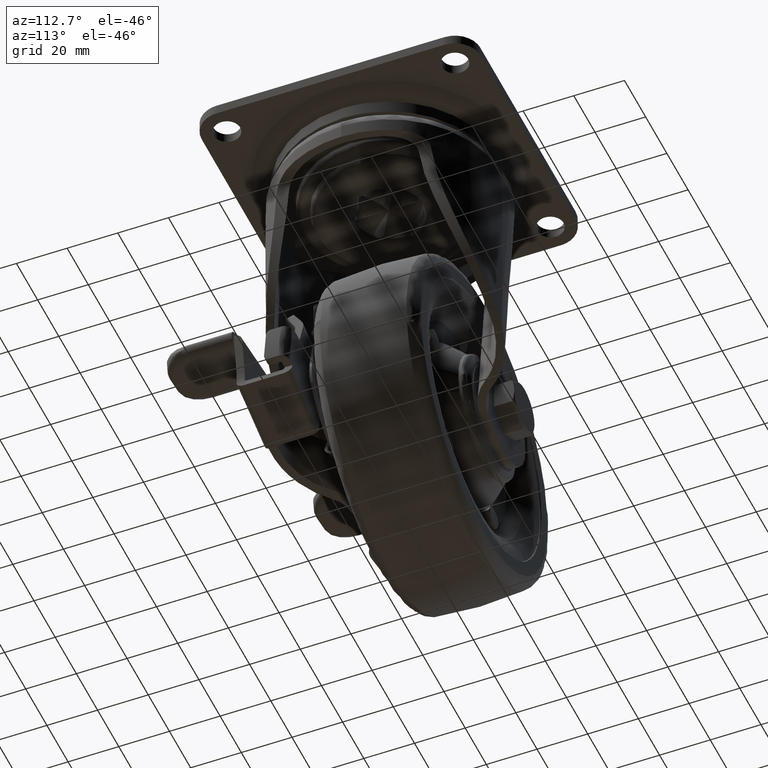
[diagram: clean part render]
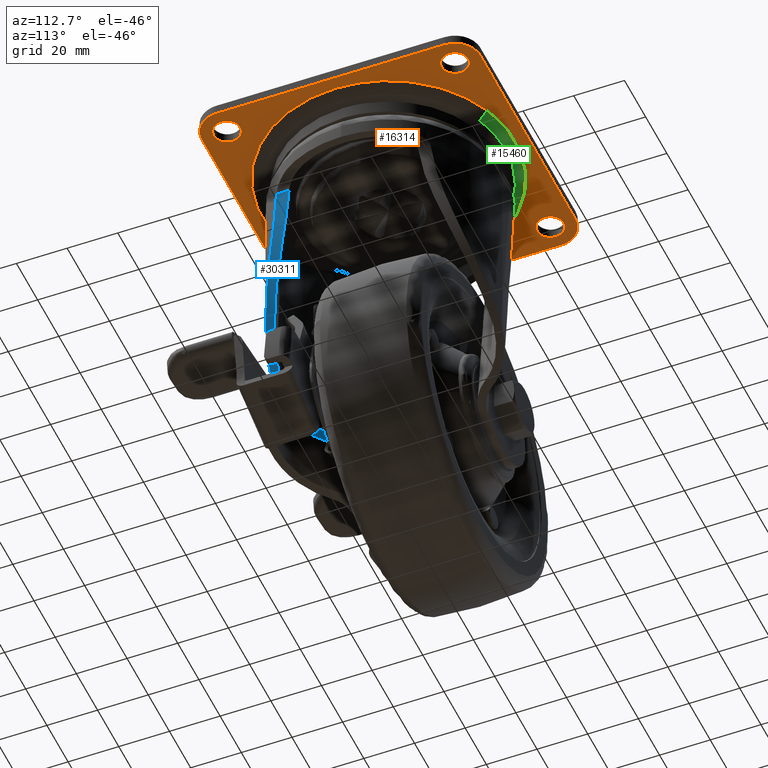
[diagram: same view with three faces highlighted in distinct colors, each labeled with its STEP entity id]
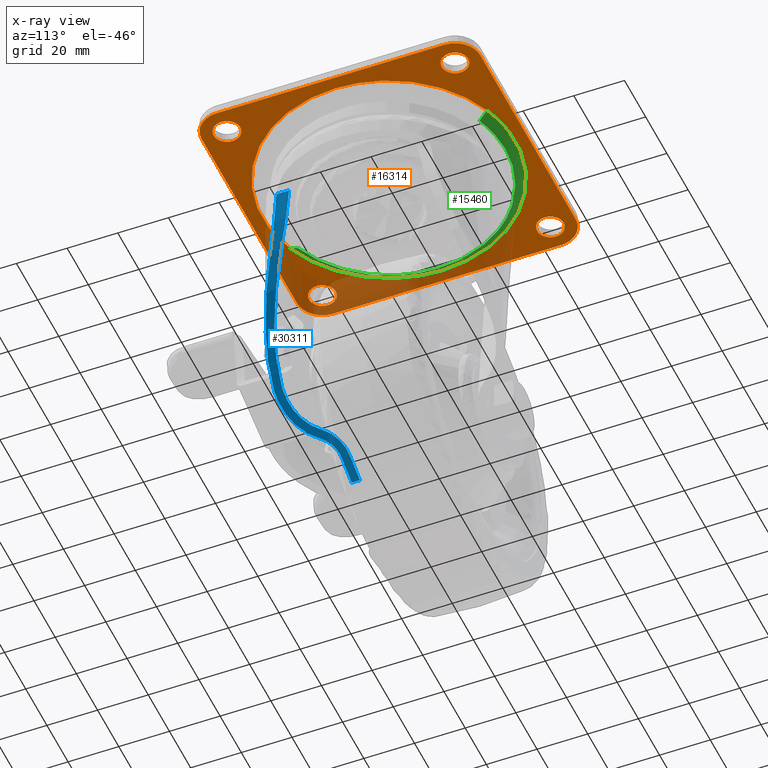
[diagram: x-ray of the same camera — body ghosted, the three highlighted faces saturated]
A machine part, auxiliary view with three faces highlighted in distinct colors.
The next image is the same camera in x-ray (body ghosted, the three faces saturated) — at least one of them is partly hidden behind the body in this view.
Their STEP definitions:

[orange] entity #16314 — the highlighted face is a freeform B-spline surface patch.
#15358=CARTESIAN_POINT('',(18.325061336310281,46.520878399073787,-3.999999999993363));
#15359=VERTEX_POINT('',#15358);
#15365=CARTESIAN_POINT('',(50.0,1.421085E-014,-4.0));
#15366=VERTEX_POINT('',#15365);
#15367=CARTESIAN_POINT('',(18.325061336310284,46.520878399073794,-3.999999999993363));
#15368=CARTESIAN_POINT('',(50.000000000001727,34.043788244907567,-3.999999999996681));
#15369=CARTESIAN_POINT('',(50.0,1.421085E-014,-4.0));
#15377=(BOUNDED_CURVE()B_SPLINE_CURVE(2,(#15367,#15368,#15369),.UNSPECIFIED.,.F.,.U.)B_SPLINE_CURVE_WITH_KNOTS((3,3),(0.312230357107682,0.500000000000000),.UNSPECIFIED.)CURVE()GEOMETRIC_REPRESENTATION_ITEM()RATIONAL_B_SPLINE_CURVE((0.890481630698705,0.780014179591266,1.0))REPRESENTATION_ITEM(''));
#15378=EDGE_CURVE('',#15359,#15366,#15377,.T.);
#15380=CARTESIAN_POINT('',(-18.325061336310281,-46.520878399073773,-3.999999999993364));
#15381=VERTEX_POINT('',#15380);
#15382=CARTESIAN_POINT('',(50.0,1.421085E-014,-4.0));
#15383=CARTESIAN_POINT('',(49.999999999998820,-50.000000000002963,-3.999999999997741));
#15384=CARTESIAN_POINT('',(-2.896260E-012,-50.000000000007368,-3.999999999994422));
#15385=CARTESIAN_POINT('',(-9.492796605387385,-50.000000000008200,-3.999999999993793));
#15386=CARTESIAN_POINT('',(-18.325061336310291,-46.520878399073766,-3.999999999993364));
#15394=(BOUNDED_CURVE()B_SPLINE_CURVE(2,(#15382,#15383,#15384,#15385,#15386),.UNSPECIFIED.,.F.,.U.)B_SPLINE_CURVE_WITH_KNOTS((3,2,3),(0.500000000000000,0.750000000000000,0.812230357107682),.UNSPECIFIED.)CURVE()GEOMETRIC_REPRESENTATION_ITEM()RATIONAL_B_SPLINE_CURVE((1.0,0.707106781186547,1.0,0.927092601595282,0.890481630698705))REPRESENTATION_ITEM(''));
#15395=EDGE_CURVE('',#15366,#15381,#15394,.T.);
#15425=CARTESIAN_POINT('',(-50.0,1.421085E-014,-4.0));
#15426=VERTEX_POINT('',#15425);
#15427=CARTESIAN_POINT('',(-18.325061336310291,-46.520878399073766,-3.999999999993364));
#15428=CARTESIAN_POINT('',(-50.000000000001720,-34.043788244907525,-3.999999999996682));
#15429=CARTESIAN_POINT('',(-50.0,1.421085E-014,-4.0));
#15437=(BOUNDED_CURVE()B_SPLINE_CURVE(2,(#15427,#15428,#15429),.UNSPECIFIED.,.F.,.U.)B_SPLINE_CURVE_WITH_KNOTS((3,3),(0.812230357107682,1.0),.UNSPECIFIED.)CURVE()GEOMETRIC_REPRESENTATION_ITEM()RATIONAL_B_SPLINE_CURVE((0.890481630698705,0.780014179591266,1.0))REPRESENTATION_ITEM(''));
#15438=EDGE_CURVE('',#15381,#15426,#15437,.T.);
#15440=CARTESIAN_POINT('',(-50.0,1.421085E-014,-4.0));
#15441=CARTESIAN_POINT('',(-49.999999999998820,50.000000000003013,-3.999999999997741));
#15442=CARTESIAN_POINT('',(2.914175E-012,50.000000000007390,-3.999999999994422));
#15443=CARTESIAN_POINT('',(9.492796605387397,50.000000000008221,-3.999999999993792));
#15444=CARTESIAN_POINT('',(18.325061336310284,46.520878399073794,-3.999999999993363));
#15452=(BOUNDED_CURVE()B_SPLINE_CURVE(2,(#15440,#15441,#15442,#15443,#15444),.UNSPECIFIED.,.F.,.U.)B_SPLINE_CURVE_WITH_KNOTS((3,2,3),(0.0,0.250000000000000,0.312230357107682),.UNSPECIFIED.)CURVE()GEOMETRIC_REPRESENTATION_ITEM()RATIONAL_B_SPLINE_CURVE((1.0,0.707106781186547,1.0,0.927092601595282,0.890481630698705))REPRESENTATION_ITEM(''));
#15453=EDGE_CURVE('',#15426,#15359,#15452,.T.);
#15513=CARTESIAN_POINT('',(-44.679502796045107,50.240208158289008,-4.0));
#15514=VERTEX_POINT('',#15513);
#15520=CARTESIAN_POINT('',(-39.750000000000000,45.0,-4.0));
#15521=VERTEX_POINT('',#15520);
#15522=CARTESIAN_POINT('',(-39.750000000000000,45.0,-4.0));
#15523=CARTESIAN_POINT('',(-39.750000000000163,49.938714054375097,-4.000000000000000));
#15524=CARTESIAN_POINT('',(-44.679502796045107,50.240208158289008,-4.000000000000001));
#15532=(BOUNDED_CURVE()B_SPLINE_CURVE(2,(#15522,#15523,#15524),.UNSPECIFIED.,.F.,.U.)B_SPLINE_CURVE_WITH_KNOTS((3,3),(0.500000000000000,0.739333213432627),.UNSPECIFIED.)CURVE()GEOMETRIC_REPRESENTATION_ITEM()RATIONAL_B_SPLINE_CURVE((1.0,0.719603698995003,0.976072580023191))REPRESENTATION_ITEM(''));
#15533=EDGE_CURVE('',#15521,#15514,#15532,.T.);
#15535=CARTESIAN_POINT('',(-45.320497203954893,39.759791841710992,-4.0));
#15536=VERTEX_POINT('',#15535);
#15537=CARTESIAN_POINT('',(-45.320497203954893,39.759791841710992,-4.000000000000000));
#15538=CARTESIAN_POINT('',(-45.160398182321202,39.750000000005478,-4.0));
#15539=CARTESIAN_POINT('',(-44.999999999999673,39.750000000005393,-4.0));
#15540=CARTESIAN_POINT('',(-39.749999999999844,39.750000000002601,-4.0));
#15541=CARTESIAN_POINT('',(-39.750000000000000,45.0,-4.0));
#15549=(BOUNDED_CURVE()B_SPLINE_CURVE(2,(#15537,#15538,#15539,#15540,#15541),.UNSPECIFIED.,.F.,.U.)B_SPLINE_CURVE_WITH_KNOTS((3,2,3),(0.239333213432627,0.250000000000000,0.500000000000000),.UNSPECIFIED.)CURVE()GEOMETRIC_REPRESENTATION_ITEM()RATIONAL_B_SPLINE_CURVE((0.976072580023191,0.987503082191544,1.0,0.707106781186547,1.0))REPRESENTATION_ITEM(''));
#15550=EDGE_CURVE('',#15536,#15521,#15549,.T.);
#15594=CARTESIAN_POINT('',(-50.249999999999993,45.0,-4.0));
#15595=VERTEX_POINT('',#15594);
#15596=CARTESIAN_POINT('',(-50.249999999999993,45.0,-4.0));
#15597=CARTESIAN_POINT('',(-50.249999999999815,40.061285945624881,-4.0));
#15598=CARTESIAN_POINT('',(-45.320497203954893,39.759791841710992,-4.0));
#15606=(BOUNDED_CURVE()B_SPLINE_CURVE(2,(#15596,#15597,#15598),.UNSPECIFIED.,.F.,.U.)B_SPLINE_CURVE_WITH_KNOTS((3,3),(0.0,0.239333213432627),.UNSPECIFIED.)CURVE()GEOMETRIC_REPRESENTATION_ITEM()RATIONAL_B_SPLINE_CURVE((1.0,0.719603698995003,0.976072580023191))REPRESENTATION_ITEM(''));
#15607=EDGE_CURVE('',#15595,#15536,#15606,.T.);
#15609=CARTESIAN_POINT('',(-44.679502796045107,50.240208158289008,-4.000000000000000));
#15610=CARTESIAN_POINT('',(-44.839601817678805,50.249999999994522,-4.000000000000001));
#15611=CARTESIAN_POINT('',(-45.000000000000327,50.249999999994600,-4.0));
#15612=CARTESIAN_POINT('',(-50.250000000000156,50.249999999997364,-4.0));
#15613=CARTESIAN_POINT('',(-50.249999999999993,45.0,-4.0));
#15621=(BOUNDED_CURVE()B_SPLINE_CURVE(2,(#15609,#15610,#15611,#15612,#15613),.UNSPECIFIED.,.F.,.U.)B_SPLINE_CURVE_WITH_KNOTS((3,2,3),(0.739333213432627,0.750000000000000,1.0),.UNSPECIFIED.)CURVE()GEOMETRIC_REPRESENTATION_ITEM()RATIONAL_B_SPLINE_CURVE((0.976072580023191,0.987503082191544,1.0,0.707106781186547,1.0))REPRESENTATION_ITEM(''));
#15622=EDGE_CURVE('',#15514,#15595,#15621,.T.);
#15695=CARTESIAN_POINT('',(45.320497203954893,50.240208158289008,-4.0));
#15696=VERTEX_POINT('',#15695);
#15702=CARTESIAN_POINT('',(50.249999999999993,45.0,-4.0));
#15703=VERTEX_POINT('',#15702);
#15704=CARTESIAN_POINT('',(50.249999999999993,45.0,-4.0));
#15705=CARTESIAN_POINT('',(50.249999999999815,49.938714054375104,-4.0));
#15706=CARTESIAN_POINT('',(45.320497203954893,50.240208158289015,-4.0));
#15714=(BOUNDED_CURVE()B_SPLINE_CURVE(2,(#15704,#15705,#15706),.UNSPECIFIED.,.F.,.U.)B_SPLINE_CURVE_WITH_KNOTS((3,3),(0.500000000000000,0.739333213432627),.UNSPECIFIED.)CURVE()GEOMETRIC_REPRESENTATION_ITEM()RATIONAL_B_SPLINE_CURVE((1.0,0.719603698995003,0.976072580023191))REPRESENTATION_ITEM(''));
#15715=EDGE_CURVE('',#15703,#15696,#15714,.T.);
#15717=CARTESIAN_POINT('',(44.679502796045107,39.759791841710992,-4.0));
#15718=VERTEX_POINT('',#15717);
#15719=CARTESIAN_POINT('',(44.679502796045114,39.759791841710992,-4.0));
#15720=CARTESIAN_POINT('',(44.839601817678798,39.750000000005464,-4.0));
#15721=CARTESIAN_POINT('',(45.000000000000327,39.750000000005393,-4.0));
#15722=CARTESIAN_POINT('',(50.250000000000156,39.750000000002601,-4.0));
#15723=CARTESIAN_POINT('',(50.249999999999993,45.0,-4.0));
#15731=(BOUNDED_CURVE()B_SPLINE_CURVE(2,(#15719,#15720,#15721,#15722,#15723),.UNSPECIFIED.,.F.,.U.)B_SPLINE_CURVE_WITH_KNOTS((3,2,3),(0.239333213432627,0.250000000000000,0.500000000000000),.UNSPECIFIED.)CURVE()GEOMETRIC_REPRESENTATION_ITEM()RATIONAL_B_SPLINE_CURVE((0.976072580023191,0.987503082191544,1.0,0.707106781186547,1.0))REPRESENTATION_ITEM(''));
#15732=EDGE_CURVE('',#15718,#15703,#15731,.T.);
#15776=CARTESIAN_POINT('',(39.750000000000000,45.0,-4.0));
#15777=VERTEX_POINT('',#15776);
#15778=CARTESIAN_POINT('',(39.750000000000000,45.0,-4.0));
#15779=CARTESIAN_POINT('',(39.750000000000171,40.061285945624896,-4.0));
#15780=CARTESIAN_POINT('',(44.679502796045114,39.759791841710992,-4.0));
#15788=(BOUNDED_CURVE()B_SPLINE_CURVE(2,(#15778,#15779,#15780),.UNSPECIFIED.,.F.,.U.)B_SPLINE_CURVE_WITH_KNOTS((3,3),(0.0,0.239333213432627),.UNSPECIFIED.)CURVE()GEOMETRIC_REPRESENTATION_ITEM()RATIONAL_B_SPLINE_CURVE((1.0,0.719603698995003,0.976072580023191))REPRESENTATION_ITEM(''));
#15789=EDGE_CURVE('',#15777,#15718,#15788,.T.);
#15791=CARTESIAN_POINT('',(45.320497203954893,50.240208158289001,-4.000000000000000));
#15792=CARTESIAN_POINT('',(45.160398182321202,50.249999999994522,-4.0));
#15793=CARTESIAN_POINT('',(44.999999999999673,50.249999999994607,-4.0));
#15794=CARTESIAN_POINT('',(39.749999999999844,50.249999999997364,-4.0));
#15795=CARTESIAN_POINT('',(39.750000000000000,45.0,-4.0));
#15803=(BOUNDED_CURVE()B_SPLINE_CURVE(2,(#15791,#15792,#15793,#15794,#15795),.UNSPECIFIED.,.F.,.U.)B_SPLINE_CURVE_WITH_KNOTS((3,2,3),(0.739333213432627,0.750000000000000,1.0),.UNSPECIFIED.)CURVE()GEOMETRIC_REPRESENTATION_ITEM()RATIONAL_B_SPLINE_CURVE((0.976072580023191,0.987503082191544,1.0,0.707106781186547,1.0))REPRESENTATION_ITEM(''));
#15804=EDGE_CURVE('',#15696,#15777,#15803,.T.);
#15877=CARTESIAN_POINT('',(-44.679502796045107,-39.759791841710992,-4.0));
#15878=VERTEX_POINT('',#15877);
#15884=CARTESIAN_POINT('',(-39.750000000000000,-45.0,-4.0));
#15885=VERTEX_POINT('',#15884);
#15886=CARTESIAN_POINT('',(-39.750000000000000,-45.0,-4.0));
#15887=CARTESIAN_POINT('',(-39.750000000000163,-40.061285945624888,-4.000000000000000));
#15888=CARTESIAN_POINT('',(-44.679502796045107,-39.759791841710985,-4.000000000000001));
#15896=(BOUNDED_CURVE()B_SPLINE_CURVE(2,(#15886,#15887,#15888),.UNSPECIFIED.,.F.,.U.)B_SPLINE_CURVE_WITH_KNOTS((3,3),(0.500000000000000,0.739333213432627),.UNSPECIFIED.)CURVE()GEOMETRIC_REPRESENTATION_ITEM()RATIONAL_B_SPLINE_CURVE((1.0,0.719603698995003,0.976072580023191))REPRESENTATION_ITEM(''));
#15897=EDGE_CURVE('',#15885,#15878,#15896,.T.);
#15899=CARTESIAN_POINT('',(-45.320497203954893,-50.240208158289008,-4.0));
#15900=VERTEX_POINT('',#15899);
#15901=CARTESIAN_POINT('',(-45.320497203954893,-50.240208158289008,-4.0));
#15902=CARTESIAN_POINT('',(-45.160398182321202,-50.249999999994529,-4.0));
#15903=CARTESIAN_POINT('',(-44.999999999999673,-50.249999999994607,-4.0));
#15904=CARTESIAN_POINT('',(-39.749999999999844,-50.249999999997385,-4.0));
#15905=CARTESIAN_POINT('',(-39.750000000000000,-45.0,-4.0));
#15913=(BOUNDED_CURVE()B_SPLINE_CURVE(2,(#15901,#15902,#15903,#15904,#15905),.UNSPECIFIED.,.F.,.U.)B_SPLINE_CURVE_WITH_KNOTS((3,2,3),(0.239333213432627,0.250000000000000,0.500000000000000),.UNSPECIFIED.)CURVE()GEOMETRIC_REPRESENTATION_ITEM()RATIONAL_B_SPLINE_CURVE((0.976072580023191,0.987503082191544,1.0,0.707106781186547,1.0))REPRESENTATION_ITEM(''));
#15914=EDGE_CURVE('',#15900,#15885,#15913,.T.);
#15958=CARTESIAN_POINT('',(-50.249999999999993,-45.0,-4.0));
#15959=VERTEX_POINT('',#15958);
#15960=CARTESIAN_POINT('',(-50.249999999999993,-45.0,-4.0));
#15961=CARTESIAN_POINT('',(-50.249999999999822,-49.938714054375090,-4.0));
#15962=CARTESIAN_POINT('',(-45.320497203954893,-50.240208158289008,-4.0));
#15970=(BOUNDED_CURVE()B_SPLINE_CURVE(2,(#15960,#15961,#15962),.UNSPECIFIED.,.F.,.U.)B_SPLINE_CURVE_WITH_KNOTS((3,3),(0.0,0.239333213432627),.UNSPECIFIED.)CURVE()GEOMETRIC_REPRESENTATION_ITEM()RATIONAL_B_SPLINE_CURVE((1.0,0.719603698995003,0.976072580023191))REPRESENTATION_ITEM(''));
#15971=EDGE_CURVE('',#15959,#15900,#15970,.T.);
#15973=CARTESIAN_POINT('',(-44.679502796045107,-39.759791841710985,-4.000000000000001));
#15974=CARTESIAN_POINT('',(-44.839601817678812,-39.750000000005464,-4.000000000000001));
#15975=CARTESIAN_POINT('',(-45.000000000000341,-39.750000000005393,-4.0));
#15976=CARTESIAN_POINT('',(-50.250000000000156,-39.750000000002601,-4.0));
#15977=CARTESIAN_POINT('',(-50.249999999999993,-45.0,-4.0));
#15985=(BOUNDED_CURVE()B_SPLINE_CURVE(2,(#15973,#15974,#15975,#15976,#15977),.UNSPECIFIED.,.F.,.U.)B_SPLINE_CURVE_WITH_KNOTS((3,2,3),(0.739333213432627,0.750000000000000,1.0),.UNSPECIFIED.)CURVE()GEOMETRIC_REPRESENTATION_ITEM()RATIONAL_B_SPLINE_CURVE((0.976072580023191,0.987503082191544,1.0,0.707106781186547,1.0))REPRESENTATION_ITEM(''));
#15986=EDGE_CURVE('',#15878,#15959,#15985,.T.);
#16059=CARTESIAN_POINT('',(45.320497203954893,-39.759791841710992,-4.0));
#16060=VERTEX_POINT('',#16059);
#16066=CARTESIAN_POINT('',(50.249999999999993,-45.0,-4.0));
#16067=VERTEX_POINT('',#16066);
#16068=CARTESIAN_POINT('',(50.249999999999993,-45.0,-4.0));
#16069=CARTESIAN_POINT('',(50.249999999999801,-40.061285945624888,-4.000000000000000));
#16070=CARTESIAN_POINT('',(45.320497203954893,-39.759791841710999,-4.000000000000000));
#16078=(BOUNDED_CURVE()B_SPLINE_CURVE(2,(#16068,#16069,#16070),.UNSPECIFIED.,.F.,.U.)B_SPLINE_CURVE_WITH_KNOTS((3,3),(0.500000000000000,0.739333213432627),.UNSPECIFIED.)CURVE()GEOMETRIC_REPRESENTATION_ITEM()RATIONAL_B_SPLINE_CURVE((1.0,0.719603698995003,0.976072580023191))REPRESENTATION_ITEM(''));
#16079=EDGE_CURVE('',#16067,#16060,#16078,.T.);
#16081=CARTESIAN_POINT('',(44.679502796045107,-50.240208158289008,-4.0));
#16082=VERTEX_POINT('',#16081);
#16083=CARTESIAN_POINT('',(44.679502796045114,-50.240208158289008,-4.0));
#16084=CARTESIAN_POINT('',(44.839601817678812,-50.249999999994529,-4.000000000000000));
#16085=CARTESIAN_POINT('',(45.000000000000327,-50.249999999994607,-4.0));
#16086=CARTESIAN_POINT('',(50.250000000000156,-50.249999999997385,-4.0));
#16087=CARTESIAN_POINT('',(50.249999999999993,-45.0,-4.0));
#16095=(BOUNDED_CURVE()B_SPLINE_CURVE(2,(#16083,#16084,#16085,#16086,#16087),.UNSPECIFIED.,.F.,.U.)B_SPLINE_CURVE_WITH_KNOTS((3,2,3),(0.239333213432627,0.250000000000000,0.500000000000000),.UNSPECIFIED.)CURVE()GEOMETRIC_REPRESENTATION_ITEM()RATIONAL_B_SPLINE_CURVE((0.976072580023192,0.987503082191545,1.0,0.707106781186547,1.0))REPRESENTATION_ITEM(''));
#16096=EDGE_CURVE('',#16082,#16067,#16095,.T.);
#16140=CARTESIAN_POINT('',(39.750000000000000,-45.0,-4.0));
#16141=VERTEX_POINT('',#16140);
#16142=CARTESIAN_POINT('',(39.750000000000000,-45.0,-4.0));
#16143=CARTESIAN_POINT('',(39.750000000000163,-49.938714054375112,-4.0));
#16144=CARTESIAN_POINT('',(44.679502796045107,-50.240208158289015,-4.0));
#16152=(BOUNDED_CURVE()B_SPLINE_CURVE(2,(#16142,#16143,#16144),.UNSPECIFIED.,.F.,.U.)B_SPLINE_CURVE_WITH_KNOTS((3,3),(0.0,0.239333213432628),.UNSPECIFIED.)CURVE()GEOMETRIC_REPRESENTATION_ITEM()RATIONAL_B_SPLINE_CURVE((1.0,0.719603698995003,0.976072580023192))REPRESENTATION_ITEM(''));
#16153=EDGE_CURVE('',#16141,#16082,#16152,.T.);
#16155=CARTESIAN_POINT('',(45.320497203954893,-39.759791841710999,-4.000000000000000));
#16156=CARTESIAN_POINT('',(45.160398182321195,-39.750000000005471,-4.000000000000001));
#16157=CARTESIAN_POINT('',(44.999999999999659,-39.750000000005393,-4.0));
#16158=CARTESIAN_POINT('',(39.749999999999829,-39.750000000002601,-4.0));
#16159=CARTESIAN_POINT('',(39.750000000000000,-45.0,-4.0));
#16167=(BOUNDED_CURVE()B_SPLINE_CURVE(2,(#16155,#16156,#16157,#16158,#16159),.UNSPECIFIED.,.F.,.U.)B_SPLINE_CURVE_WITH_KNOTS((3,2,3),(0.739333213432627,0.750000000000000,1.0),.UNSPECIFIED.)CURVE()GEOMETRIC_REPRESENTATION_ITEM()RATIONAL_B_SPLINE_CURVE((0.976072580023191,0.987503082191544,1.0,0.707106781186547,1.0))REPRESENTATION_ITEM(''));
#16168=EDGE_CURVE('',#16060,#16141,#16167,.T.);
#16189=CARTESIAN_POINT('',(-60.494499786798663,60.494499786798663,-4.0));
#16190=CARTESIAN_POINT('',(60.494502737228572,60.494499786798663,-4.0));
#16191=CARTESIAN_POINT('',(-60.494499786798663,-60.494502737228572,-4.0));
#16192=CARTESIAN_POINT('',(60.494502737228572,-60.494502737228572,-4.0));
#16193=B_SPLINE_SURFACE_WITH_KNOTS('',1,1,((#16189,#16191),(#16190,#16192)),.UNSPECIFIED.,.F.,.F.,.U.,(2,2),(2,2),(0.0,120.989002524027200),(0.0,120.989002524027200),.UNSPECIFIED.);
#16194=CARTESIAN_POINT('',(55.0,45.0,-4.0));
#16195=VERTEX_POINT('',#16194);
#16196=CARTESIAN_POINT('',(45.0,55.0,-4.0));
#16197=VERTEX_POINT('',#16196);
#16198=CARTESIAN_POINT('',(55.0,45.0,-4.0));
#16199=CARTESIAN_POINT('',(55.000000000000007,55.000000000000007,-4.000000000000000));
#16200=CARTESIAN_POINT('',(45.0,55.0,-4.0));
#16208=(BOUNDED_CURVE()B_SPLINE_CURVE(2,(#16198,#16199,#16200),.UNSPECIFIED.,.F.,.U.)CURVE()GEOMETRIC_REPRESENTATION_ITEM()QUASI_UNIFORM_CURVE()RATIONAL_B_SPLINE_CURVE((1.0,0.707106781186548,1.0))REPRESENTATION_ITEM(''));
#16209=EDGE_CURVE('',#16195,#16197,#16208,.T.);
#16210=ORIENTED_EDGE('',*,*,#16209,.F.);
#16211=CARTESIAN_POINT('',(55.0,-45.0,-4.0));
#16212=VERTEX_POINT('',#16211);
#16213=CARTESIAN_POINT('',(55.0,-45.0,-4.0));
#16214=CARTESIAN_POINT('',(55.0,45.0,-4.0));
#16215=QUASI_UNIFORM_CURVE('',1,(#16213,#16214),.UNSPECIFIED.,.F.,.U.);
#16216=EDGE_CURVE('',#16212,#16195,#16215,.T.);
#16217=ORIENTED_EDGE('',*,*,#16216,.F.);
#16218=CARTESIAN_POINT('',(45.0,-55.0,-4.0));
#16219=VERTEX_POINT('',#16218);
#16220=CARTESIAN_POINT('',(45.0,-55.0,-4.0));
#16221=CARTESIAN_POINT('',(55.000000000000007,-55.000000000000007,-4.000000000000000));
#16222=CARTESIAN_POINT('',(55.0,-45.0,-4.0));
#16230=(BOUNDED_CURVE()B_SPLINE_CURVE(2,(#16220,#16221,#16222),.UNSPECIFIED.,.F.,.U.)CURVE()GEOMETRIC_REPRESENTATION_ITEM()QUASI_UNIFORM_CURVE()RATIONAL_B_SPLINE_CURVE((1.0,0.707106781186548,1.0))REPRESENTATION_ITEM(''));
#16231=EDGE_CURVE('',#16219,#16212,#16230,.T.);
#16232=ORIENTED_EDGE('',*,*,#16231,.F.);
#16233=CARTESIAN_POINT('',(-45.0,-55.0,-4.0));
#16234=VERTEX_POINT('',#16233);
#16235=CARTESIAN_POINT('',(-45.0,-55.0,-4.0));
#16236=CARTESIAN_POINT('',(45.0,-55.0,-4.0));
#16237=QUASI_UNIFORM_CURVE('',1,(#16235,#16236),.UNSPECIFIED.,.F.,.U.);
#16238=EDGE_CURVE('',#16234,#16219,#16237,.T.);
#16239=ORIENTED_EDGE('',*,*,#16238,.F.);
#16240=CARTESIAN_POINT('',(-55.0,-45.0,-4.0));
#16241=VERTEX_POINT('',#16240);
#16242=CARTESIAN_POINT('',(-55.0,-45.0,-4.0));
#16243=CARTESIAN_POINT('',(-55.000000000000007,-55.000000000000007,-4.000000000000000));
#16244=CARTESIAN_POINT('',(-45.0,-55.0,-4.0));
#16252=(BOUNDED_CURVE()B_SPLINE_CURVE(2,(#16242,#16243,#16244),.UNSPECIFIED.,.F.,.U.)CURVE()GEOMETRIC_REPRESENTATION_ITEM()QUASI_UNIFORM_CURVE()RATIONAL_B_SPLINE_CURVE((1.0,0.707106781186548,1.0))REPRESENTATION_ITEM(''));
#16253=EDGE_CURVE('',#16241,#16234,#16252,.T.);
#16254=ORIENTED_EDGE('',*,*,#16253,.F.);
#16255=CARTESIAN_POINT('',(-55.0,45.0,-4.0));
#16256=VERTEX_POINT('',#16255);
#16257=CARTESIAN_POINT('',(-55.0,45.0,-4.0));
#16258=CARTESIAN_POINT('',(-55.0,-45.0,-4.0));
#16259=QUASI_UNIFORM_CURVE('',1,(#16257,#16258),.UNSPECIFIED.,.F.,.U.);
#16260=EDGE_CURVE('',#16256,#16241,#16259,.T.);
#16261=ORIENTED_EDGE('',*,*,#16260,.F.);
#16262=CARTESIAN_POINT('',(-45.0,55.0,-4.0));
#16263=VERTEX_POINT('',#16262);
#16264=CARTESIAN_POINT('',(-45.0,55.0,-4.0));
#16265=CARTESIAN_POINT('',(-55.000000000000007,55.000000000000007,-4.000000000000000));
#16266=CARTESIAN_POINT('',(-55.0,45.0,-4.0));
#16274=(BOUNDED_CURVE()B_SPLINE_CURVE(2,(#16264,#16265,#16266),.UNSPECIFIED.,.F.,.U.)CURVE()GEOMETRIC_REPRESENTATION_ITEM()QUASI_UNIFORM_CURVE()RATIONAL_B_SPLINE_CURVE((1.0,0.707106781186548,1.0))REPRESENTATION_ITEM(''));
#16275=EDGE_CURVE('',#16263,#16256,#16274,.T.);
#16276=ORIENTED_EDGE('',*,*,#16275,.F.);
#16277=CARTESIAN_POINT('',(45.0,55.0,-4.0));
#16278=CARTESIAN_POINT('',(-45.0,55.0,-4.0));
#16279=QUASI_UNIFORM_CURVE('',1,(#16277,#16278),.UNSPECIFIED.,.F.,.U.);
#16280=EDGE_CURVE('',#16197,#16263,#16279,.T.);
#16281=ORIENTED_EDGE('',*,*,#16280,.F.);
#16282=EDGE_LOOP('',(#16210,#16217,#16232,#16239,#16254,#16261,#16276,#16281));
#16283=FACE_OUTER_BOUND('',#16282,.T.);
#16284=ORIENTED_EDGE('',*,*,#16079,.T.);
#16285=ORIENTED_EDGE('',*,*,#16168,.T.);
#16286=ORIENTED_EDGE('',*,*,#16153,.T.);
#16287=ORIENTED_EDGE('',*,*,#16096,.T.);
#16288=EDGE_LOOP('',(#16284,#16285,#16286,#16287));
#16289=FACE_BOUND('',#16288,.T.);
#16290=ORIENTED_EDGE('',*,*,#15897,.T.);
#16291=ORIENTED_EDGE('',*,*,#15986,.T.);
#16292=ORIENTED_EDGE('',*,*,#15971,.T.);
#16293=ORIENTED_EDGE('',*,*,#15914,.T.);
#16294=EDGE_LOOP('',(#16290,#16291,#16292,#16293));
#16295=FACE_BOUND('',#16294,.T.);
#16296=ORIENTED_EDGE('',*,*,#15715,.T.);
#16297=ORIENTED_EDGE('',*,*,#15804,.T.);
#16298=ORIENTED_EDGE('',*,*,#15789,.T.);
#16299=ORIENTED_EDGE('',*,*,#15732,.T.);
#16300=EDGE_LOOP('',(#16296,#16297,#16298,#16299));
#16301=FACE_BOUND('',#16300,.T.);
#16302=ORIENTED_EDGE('',*,*,#15533,.T.);
#16303=ORIENTED_EDGE('',*,*,#15622,.T.);
#16304=ORIENTED_EDGE('',*,*,#15607,.T.);
#16305=ORIENTED_EDGE('',*,*,#15550,.T.);
#16306=EDGE_LOOP('',(#16302,#16303,#16304,#16305));
#16307=FACE_BOUND('',#16306,.T.);
#16308=ORIENTED_EDGE('',*,*,#15453,.F.);
#16309=ORIENTED_EDGE('',*,*,#15438,.F.);
#16310=ORIENTED_EDGE('',*,*,#15395,.F.);
#16311=ORIENTED_EDGE('',*,*,#15378,.F.);
#16312=EDGE_LOOP('',(#16308,#16309,#16310,#16311));
#16313=FACE_BOUND('',#16312,.T.);
#16314=ADVANCED_FACE('',(#16283,#16289,#16295,#16301,#16307,#16313),#16193,.T.);

[blue] entity #30311 — the highlighted face is a freeform B-spline surface patch.
#29293=CARTESIAN_POINT('',(-13.958340382854940,-32.171004480450847,-109.168453778326590));
#29294=VERTEX_POINT('',#29293);
#29300=CARTESIAN_POINT('',(-24.742344826114749,-25.649999999999999,-115.044881371074000));
#29301=VERTEX_POINT('',#29300);
#29302=CARTESIAN_POINT('',(-24.742344826114749,-25.649999999999999,-115.044881371074000));
#29303=CARTESIAN_POINT('',(-24.190412240721589,-25.650000000000020,-114.786590730680300));
#29304=CARTESIAN_POINT('',(-23.646766445579999,-25.687769128571439,-114.526052733897900));
#29305=CARTESIAN_POINT('',(-22.575111066813680,-25.834718690428360,-114.000791604115610));
#29306=CARTESIAN_POINT('',(-22.047104710375500,-25.943914283693200,-113.736067767809300));
#29307=CARTESIAN_POINT('',(-21.266579206367851,-26.161065951219570,-113.336254944710900));
#29308=CARTESIAN_POINT('',(-21.008322437452001,-26.242371084852671,-113.202531413340400));
#29309=CARTESIAN_POINT('',(-20.623824274207589,-26.377947470953071,-113.001338588919300));
#29310=CARTESIAN_POINT('',(-20.496139670660479,-26.425411282841061,-112.934173210368800));
#29311=CARTESIAN_POINT('',(-20.241738516300771,-26.524945838127529,-112.799654119423000));
#29312=CARTESIAN_POINT('',(-20.115528163561478,-26.576821492426671,-112.732567702895810));
#29313=CARTESIAN_POINT('',(-19.490464081943120,-26.846159112786101,-112.398630314858200));
#29314=CARTESIAN_POINT('',(-19.008328626311489,-27.093819314078459,-112.135612121565400));
#29315=CARTESIAN_POINT('',(-18.078438173788641,-27.652253579920892,-111.619015901189900));
#29316=CARTESIAN_POINT('',(-17.630683312090309,-27.963022681637870,-111.365432038138490));
#29317=CARTESIAN_POINT('',(-16.985050869415488,-28.478194305400130,-110.993647807955700));
#29318=CARTESIAN_POINT('',(-16.774186723531130,-28.658115379464121,-110.871158721660810));
#29319=CARTESIAN_POINT('',(-16.464570320891230,-28.940783446115741,-110.689849803018400));
#29320=CARTESIAN_POINT('',(-16.362790327085840,-29.036862409189649,-110.629999976792310));
#29321=CARTESIAN_POINT('',(-16.162726254315579,-29.232090968837820,-110.511894677903700));
#29322=CARTESIAN_POINT('',(-16.064335877356331,-29.331337166614318,-110.453576985428300));
#29323=CARTESIAN_POINT('',(-15.580524403726660,-29.835706046411470,-110.165729477090590));
#29324=CARTESIAN_POINT('',(-15.219411274250410,-30.265126605999210,-109.947365063961900));
#29325=CARTESIAN_POINT('',(-14.549136764684921,-31.177106784100388,-109.537048855995490));
#29326=CARTESIAN_POINT('',(-14.239955605257389,-31.659642282395669,-109.345078803464200));
#29327=CARTESIAN_POINT('',(-13.958340382854940,-32.171004480450847,-109.168453778326390));
#29328=B_SPLINE_CURVE_WITH_KNOTS('',3,(#29302,#29303,#29304,#29305,#29306,#29307,#29308,#29309,#29310,#29311,#29312,#29313,#29314,#29315,#29316,#29317,#29318,#29319,#29320,#29321,#29322,#29323,#29324,#29325,#29326,#29327),.UNSPECIFIED.,.F.,.U.,(4,2,2,2,2,2,2,2,2,2,2,2,4),(0.0,0.124999999999999,0.249999999999998,0.312499999999998,0.343749999999998,0.374999999999998,0.499999999999998,0.624999999999999,0.687499999999998,0.718749999999998,0.749999999999999,0.874999999999999,1.0),.UNSPECIFIED.);
#29329=EDGE_CURVE('',#29301,#29294,#29328,.T.);
#29381=CARTESIAN_POINT('',(-16.555370508401651,-33.790154909432403,-110.743020481817990));
#29382=VERTEX_POINT('',#29381);
#29425=CARTESIAN_POINT('',(-24.742344826114749,-28.850000000000001,-115.044881371074000));
#29426=VERTEX_POINT('',#29425);
#29432=CARTESIAN_POINT('',(-16.555370508401651,-33.790154909432452,-110.743020481817990));
#29433=CARTESIAN_POINT('',(-16.769664878360292,-33.402765666140027,-110.868550805787810));
#29434=CARTESIAN_POINT('',(-17.004892964973621,-33.037217168680073,-111.005278741320590));
#29435=CARTESIAN_POINT('',(-17.514615514302449,-32.346448813328692,-111.298335834360900));
#29436=CARTESIAN_POINT('',(-17.789125456362399,-32.021246896747293,-111.454677203337500));
#29437=CARTESIAN_POINT('',(-18.230162605686601,-31.563022158811521,-111.702734893314600));
#29438=CARTESIAN_POINT('',(-18.382070317384962,-31.415227384619129,-111.787686789041200));
#29439=CARTESIAN_POINT('',(-18.617400889806341,-31.201022237690768,-111.918439109802900));
#29440=CARTESIAN_POINT('',(-18.697171367747320,-31.130808121779680,-111.962622050192710));
#29441=CARTESIAN_POINT('',(-18.858113546496892,-30.993828681021139,-112.051471481861600));
#29442=CARTESIAN_POINT('',(-18.939407875356292,-30.926946815664010,-112.096206397219010));
#29443=CARTESIAN_POINT('',(-19.349943209399971,-30.600430728442198,-112.321362100018700));
#29444=CARTESIAN_POINT('',(-19.691322621272569,-30.364366360636030,-112.506198347279000));
#29445=CARTESIAN_POINT('',(-20.399521988480849,-29.940647988507671,-112.883985871929000));
#29446=CARTESIAN_POINT('',(-20.766343081219290,-29.752999157169580,-113.076940977618090));
#29447=CARTESIAN_POINT('',(-21.241290745418450,-29.549178599159621,-113.322788575655490));
#29448=CARTESIAN_POINT('',(-21.337219830247399,-29.509913464927799,-113.372251367749000));
#29449=CARTESIAN_POINT('',(-21.530223824551008,-29.434712834917981,-113.471368862896600));
#29450=CARTESIAN_POINT('',(-21.627069836931589,-29.398861580090990,-113.520906506277000));
#29451=CARTESIAN_POINT('',(-21.918632063344230,-29.296478561380550,-113.669442424470010));
#29452=CARTESIAN_POINT('',(-22.114371597359661,-29.235111818855081,-113.768363233605600));
#29453=CARTESIAN_POINT('',(-22.705654372592122,-29.071283908387390,-114.064724397798000));
#29454=CARTESIAN_POINT('',(-23.105248671469880,-28.989010942150291,-114.261757519374100));
#29455=CARTESIAN_POINT('',(-23.915413914358460,-28.878374016354410,-114.654412367346100));
#29456=CARTESIAN_POINT('',(-24.325982807331179,-28.850000000000019,-114.850034363824700));
#29457=CARTESIAN_POINT('',(-24.742344826114749,-28.850000000000001,-115.044881371074000));
#29458=B_SPLINE_CURVE_WITH_KNOTS('',3,(#29432,#29433,#29434,#29435,#29436,#29437,#29438,#29439,#29440,#29441,#29442,#29443,#29444,#29445,#29446,#29447,#29448,#29449,#29450,#29451,#29452,#29453,#29454,#29455,#29456,#29457),.UNSPECIFIED.,.F.,.U.,(4,2,2,2,2,2,2,2,2,2,2,2,4),(0.0,0.124999999999998,0.249999999999995,0.312499999999992,0.343749999999991,0.374999999999991,0.499999999999992,0.624999999999994,0.656249999999994,0.687499999999994,0.749999999999995,0.874999999999997,1.0),.UNSPECIFIED.);
#29459=EDGE_CURVE('',#29382,#29426,#29458,.T.);
#29589=CARTESIAN_POINT('',(-34.147421906112200,-25.649999999999999,-118.878716382554000));
#29590=VERTEX_POINT('',#29589);
#29591=CARTESIAN_POINT('',(-34.147421906112207,-25.649999999999999,-118.878716382554100));
#29592=CARTESIAN_POINT('',(-29.347746057616998,-25.650000000000002,-117.200093918467940));
#29593=CARTESIAN_POINT('',(-24.742344826114788,-25.649999999999999,-115.044881371074000));
#29601=(BOUNDED_CURVE()B_SPLINE_CURVE(2,(#29591,#29592,#29593),.UNSPECIFIED.,.F.,.U.)CURVE()GEOMETRIC_REPRESENTATION_ITEM()QUASI_UNIFORM_CURVE()RATIONAL_B_SPLINE_CURVE((1.0,0.998718555274707,1.0))REPRESENTATION_ITEM(''));
#29602=EDGE_CURVE('',#29590,#29301,#29601,.T.);
#29663=CARTESIAN_POINT('',(0.845914479159019,-41.657677141153300,-97.839411577003304));
#29664=VERTEX_POINT('',#29663);
#29672=CARTESIAN_POINT('',(-13.958340382854900,-32.171004480450833,-109.168453778326590));
#29673=CARTESIAN_POINT('',(-13.538455538712480,-32.933439248710208,-108.905108031179400));
#29674=CARTESIAN_POINT('',(-13.076551945408040,-33.653058654485712,-108.611103309050090));
#29675=CARTESIAN_POINT('',(-12.326004040973130,-34.671505252380008,-108.123099788138500));
#29676=CARTESIAN_POINT('',(-12.066170466217260,-35.000786715009568,-107.952571526151700));
#29677=CARTESIAN_POINT('',(-11.662330259706730,-35.479512457739837,-107.684625090248800));
#29678=CARTESIAN_POINT('',(-11.525366804267851,-35.636553041504442,-107.593282344864090));
#29679=CARTESIAN_POINT('',(-11.246784089503359,-35.945559756135957,-107.406462468506600));
#29680=CARTESIAN_POINT('',(-11.104899536802630,-36.097794461251567,-107.310804726476310));
#29681=CARTESIAN_POINT('',(-10.388060805879380,-36.841997468377052,-106.824765415541900));
#29682=CARTESIAN_POINT('',(-9.790596746264122,-37.384077698092838,-106.410991842285600));
#29683=CARTESIAN_POINT('',(-8.554692273061338,-38.370338582911849,-105.533268781388400));
#29684=CARTESIAN_POINT('',(-7.916219759668644,-38.814468057303543,-105.069307999467500));
#29685=CARTESIAN_POINT('',(-7.095359949090536,-39.310898040378547,-104.456718859820800));
#29686=CARTESIAN_POINT('',(-6.930034225605237,-39.407243868919323,-104.332557238551200));
#29687=CARTESIAN_POINT('',(-6.597193340052033,-39.594045703032990,-104.080947627718800));
#29688=CARTESIAN_POINT('',(-6.430424548589754,-39.684083711346972,-103.954063853428490));
#29689=CARTESIAN_POINT('',(-5.929171200663275,-39.944400408740577,-103.570185306738590));
#29690=CARTESIAN_POINT('',(-5.593742114122522,-40.104891746331681,-103.309964770459200));
#29691=CARTESIAN_POINT('',(-4.584360198651030,-40.549138984028389,-102.516419070070800));
#29692=CARTESIAN_POINT('',(-3.907340362360289,-40.795787284040060,-101.970229157868200));
#29693=CARTESIAN_POINT('',(-2.887793441156524,-41.096663369634037,-101.124898395888490));
#29694=CARTESIAN_POINT('',(-2.547267422139728,-41.185407476660963,-100.838775476912600));
#29695=CARTESIAN_POINT('',(-2.035670614072601,-41.301591444511622,-100.402990440010300));
#29696=CARTESIAN_POINT('',(-1.865003355602412,-41.337495762642092,-100.256628359263500));
#29697=CARTESIAN_POINT('',(-1.523429426363066,-41.403702971156321,-99.961686262159049));
#29698=CARTESIAN_POINT('',(-1.352542578262424,-41.433995735288732,-99.813121066081479));
#29699=CARTESIAN_POINT('',(-0.500558603821902,-41.571130104942441,-99.067334232778506));
#29700=CARTESIAN_POINT('',(0.175581846327371,-41.635612298171353,-98.459171806147381));
#29701=CARTESIAN_POINT('',(0.845914479159009,-41.657677141153300,-97.839411577003304));
#29702=B_SPLINE_CURVE_WITH_KNOTS('',3,(#29672,#29673,#29674,#29675,#29676,#29677,#29678,#29679,#29680,#29681,#29682,#29683,#29684,#29685,#29686,#29687,#29688,#29689,#29690,#29691,#29692,#29693,#29694,#29695,#29696,#29697,#29698,#29699,#29700,#29701),.UNSPECIFIED.,.F.,.U.,(4,2,2,2,2,2,2,2,2,2,2,2,2,2,4),(0.0,0.124999999999999,0.187499999999998,0.218749999999997,0.249999999999997,0.374999999999995,0.499999999999992,0.531249999999992,0.562499999999992,0.624999999999993,0.749999999999994,0.812499999999995,0.843749999999996,0.874999999999997,1.0),.UNSPECIFIED.);
#29703=EDGE_CURVE('',#29294,#29664,#29702,.T.);
#29943=CARTESIAN_POINT('',(-34.147422048417553,-28.850000000000001,-118.878715984891600));
#29944=VERTEX_POINT('',#29943);
#29945=CARTESIAN_POINT('',(-34.147422048417553,-28.850000000000001,-118.878715984891600));
#29946=CARTESIAN_POINT('',(-29.347746059000482,-28.849999999999998,-117.200093919115430));
#29947=CARTESIAN_POINT('',(-24.742344826114788,-28.850000000000001,-115.044881371074000));
#29955=(BOUNDED_CURVE()B_SPLINE_CURVE(2,(#29945,#29946,#29947),.UNSPECIFIED.,.F.,.U.)CURVE()GEOMETRIC_REPRESENTATION_ITEM()QUASI_UNIFORM_CURVE()RATIONAL_B_SPLINE_CURVE((1.0,0.998718555273939,1.0))REPRESENTATION_ITEM(''));
#29956=EDGE_CURVE('',#29944,#29426,#29955,.T.);
#30018=CARTESIAN_POINT('',(0.665113919410144,-44.852925147740912,-98.006161333690002));
#30019=VERTEX_POINT('',#30018);
#30020=CARTESIAN_POINT('',(-16.555370508401609,-33.790154909432417,-110.743020481818210));
#30021=CARTESIAN_POINT('',(-16.494135386442739,-33.900852299957158,-110.707149895487310));
#30022=CARTESIAN_POINT('',(-16.431986925300180,-34.011040126397077,-110.670657060400400));
#30023=CARTESIAN_POINT('',(-16.305860730061202,-34.230391459634653,-110.596408793848790));
#30024=CARTESIAN_POINT('',(-16.241829670196861,-34.339641374167769,-110.558621673516400));
#30025=CARTESIAN_POINT('',(-16.047716581799939,-34.664640472666271,-110.443769826329100));
#30026=CARTESIAN_POINT('',(-15.915443633010080,-34.877952166118853,-110.365114611153500));
#30027=CARTESIAN_POINT('',(-15.510300837966460,-35.508036318598663,-110.122878679467210));
#30028=CARTESIAN_POINT('',(-15.229116515364810,-35.914968961181039,-109.953034615900290));
#30029=CARTESIAN_POINT('',(-14.354065419014439,-37.097653792997541,-109.418108880659500));
#30030=CARTESIAN_POINT('',(-13.728812929742769,-37.835433548098479,-109.027733533116300));
#30031=CARTESIAN_POINT('',(-12.898774185897709,-38.696082861884399,-108.494865788178600));
#30032=CARTESIAN_POINT('',(-12.646113462930170,-38.949642547993570,-108.331626139826400));
#30033=CARTESIAN_POINT('',(-12.388049423885260,-39.196249978951322,-108.163205529254900));
#30034=CARTESIAN_POINT('',(-12.214812335721330,-39.359108077818483,-108.049759825454000));
#30035=CARTESIAN_POINT('',(-12.127519060482779,-39.439833788793152,-107.992403140746210));
#30036=CARTESIAN_POINT('',(-11.689153904611921,-39.838619849518523,-107.703378373338790));
#30037=CARTESIAN_POINT('',(-11.332766151103529,-40.141878456105168,-107.465243124628300));
#30038=CARTESIAN_POINT('',(-10.248120643473429,-41.006644238945007,-106.730003823687100));
#30039=CARTESIAN_POINT('',(-9.504448941202739,-41.523292730781002,-106.212113268209390));
#30040=CARTESIAN_POINT('',(-8.362949179268593,-42.214359437170117,-105.392375452136700));
#30041=CARTESIAN_POINT('',(-7.978098472828878,-42.430689811205987,-105.111966927213100));
#30042=CARTESIAN_POINT('',(-7.394761034262115,-42.734557905060562,-104.680341654865400));
#30043=CARTESIAN_POINT('',(-7.199304120944982,-42.832407314502291,-104.534630441236400));
#30044=CARTESIAN_POINT('',(-6.806435780128067,-43.021271032859630,-104.239482453045300));
#30045=CARTESIAN_POINT('',(-6.608909039083134,-43.112324197405513,-104.089954025978000));
#30046=CARTESIAN_POINT('',(-5.622403889904820,-43.548108697653788,-103.337358187613700));
#30047=CARTESIAN_POINT('',(-4.832334830477436,-43.836879189601063,-102.716086467304000));
#30048=CARTESIAN_POINT('',(-3.253745941921317,-44.306052111653273,-101.434997101658990));
#30049=CARTESIAN_POINT('',(-2.465214474335054,-44.486404591312002,-100.775176734876500));
#30050=CARTESIAN_POINT('',(-1.482032966165947,-44.648262262335358,-99.925868203476654));
#30051=CARTESIAN_POINT('',(-1.285519202070559,-44.677445183562931,-99.754778594622977));
#30052=CARTESIAN_POINT('',(-0.892768997299292,-44.729502765129553,-99.410127622260418));
#30053=CARTESIAN_POINT('',(-0.696441833293332,-44.752386433054653,-99.236485334195294));
#30054=CARTESIAN_POINT('',(-0.108498576516600,-44.811601021745837,-98.712338545729324));
#30055=CARTESIAN_POINT('',(0.280006427664637,-44.838309675903012,-98.360467972666484));
#30056=CARTESIAN_POINT('',(0.665113919410222,-44.852925147740898,-98.006161333690073));
#30057=B_SPLINE_CURVE_WITH_KNOTS('',3,(#30020,#30021,#30022,#30023,#30024,#30025,#30026,#30027,#30028,#30029,#30030,#30031,#30032,#30033,#30034,#30035,#30036,#30037,#30038,#30039,#30040,#30041,#30042,#30043,#30044,#30045,#30046,#30047,#30048,#30049,#30050,#30051,#30052,#30053,#30054,#30055,#30056),.UNSPECIFIED.,.F.,.U.,(4,2,2,2,2,2,1,2,2,2,2,2,2,2,2,2,2,2,4),(0.0,0.015625000000000,0.031249999999999,0.062499999999999,0.124999999999996,0.249999999999991,0.281249999999990,0.296874999999989,0.312499999999989,0.374999999999989,0.499999999999991,0.562499999999993,0.593749999999993,0.624999999999994,0.749999999999995,0.874999999999997,0.906249999999998,0.937499999999998,1.0),.UNSPECIFIED.);
#30058=EDGE_CURVE('',#29382,#30019,#30057,.T.);
#30173=CARTESIAN_POINT('',(-34.147421906112200,-25.649999999999999,-118.878716382554000));
#30174=CARTESIAN_POINT('',(-34.147422048417553,-28.850000000000001,-118.878715984891600));
#30175=QUASI_UNIFORM_CURVE('',1,(#30173,#30174),.UNSPECIFIED.,.F.,.U.);
#30176=EDGE_CURVE('',#29590,#29944,#30175,.T.);
#30182=CARTESIAN_POINT('',(32.983816930359147,-25.087429469579298,-28.304949847111718));
#30183=CARTESIAN_POINT('',(32.983816930359147,-45.350986497645607,-28.304949847111718));
#30184=CARTESIAN_POINT('',(30.028270093548290,-25.087429469579302,-99.817818991695958));
#30185=CARTESIAN_POINT('',(30.028270093548290,-45.350986497645607,-99.817818991695958));
#30186=CARTESIAN_POINT('',(-38.550708006131551,-25.087429469579298,-120.305607383775890));
#30187=CARTESIAN_POINT('',(-38.550708006131551,-45.350986497645607,-120.305607383775890));
#30195=(BOUNDED_SURFACE()B_SPLINE_SURFACE(1,2,((#30182,#30184,#30186),(#30183,#30185,#30187)),.UNSPECIFIED.,.F.,.F.,.U.)B_SPLINE_SURFACE_WITH_KNOTS((2,2),(3,3),(0.0,20.263557028066309),(0.0,128.480103075016810),.UNSPECIFIED.)GEOMETRIC_REPRESENTATION_ITEM()RATIONAL_B_SPLINE_SURFACE(((1.0,0.814115518356319,1.0),(1.0,0.814115518356319,1.0)))REPRESENTATION_ITEM('')SURFACE());
#30196=CARTESIAN_POINT('',(32.840996432676263,-30.514174671686899,-30.927961300702901));
#30197=VERTEX_POINT('',#30196);
#30198=CARTESIAN_POINT('',(0.983958270327116,-44.855470106970003,-97.711542046221595));
#30199=VERTEX_POINT('',#30198);
#30200=CARTESIAN_POINT('',(32.840996432676263,-30.514174671686899,-30.927961300702901));
#30201=CARTESIAN_POINT('',(32.731630099860837,-30.632330894282081,-32.546094941064631));
#30202=CARTESIAN_POINT('',(32.583944755285472,-30.790717479955401,-34.148724662803332));
#30203=CARTESIAN_POINT('',(32.215005379383093,-31.177960667727639,-37.325495495106431));
#30204=CARTESIAN_POINT('',(31.993748986579259,-31.406789397317429,-38.899641378470413));
#30205=CARTESIAN_POINT('',(31.479743140969362,-31.923853526529800,-42.021961037635847));
#30206=CARTESIAN_POINT('',(31.186991467957242,-32.212068984576547,-43.570138118607503));
#30207=CARTESIAN_POINT('',(30.531151511851469,-32.836562791659382,-46.642899830400637));
#30208=CARTESIAN_POINT('',(30.168061559413310,-33.172829663806667,-48.167486282591760));
#30209=CARTESIAN_POINT('',(29.371842230880731,-33.882273405533120,-51.195232966326117));
#30210=CARTESIAN_POINT('',(28.938712087202831,-34.255446139718060,-52.698393819863433));
#30211=CARTESIAN_POINT('',(28.236094140373918,-34.834837926547017,-54.938503494586953));
#30212=CARTESIAN_POINT('',(27.993061357243821,-35.031244232121779,-55.682766129840083));
#30213=CARTESIAN_POINT('',(27.489200453036879,-35.429309848749867,-57.166626006647171));
#30214=CARTESIAN_POINT('',(27.228122795627090,-35.631150784907263,-57.906866906281500));
#30215=CARTESIAN_POINT('',(26.421143775048328,-36.240241938700727,-60.112275977825377));
#30216=CARTESIAN_POINT('',(25.850857053407641,-36.651589258078467,-61.564310592639139));
#30217=CARTESIAN_POINT('',(24.645915459018759,-37.475007213163657,-64.434776762133907));
#30218=CARTESIAN_POINT('',(24.011259198952249,-37.887089062461428,-65.853204463774858));
#30219=CARTESIAN_POINT('',(22.677053516709631,-38.702881872110282,-68.658725358907759));
#30220=CARTESIAN_POINT('',(21.977504427053599,-39.106604614757117,-70.045815432892368));
#30221=CARTESIAN_POINT('',(20.512251665161958,-39.896974567302557,-72.790438651954332));
#30222=CARTESIAN_POINT('',(19.746550068240872,-40.283634522892449,-74.147969312690009));
#30223=CARTESIAN_POINT('',(18.146958658199338,-41.031197986952129,-76.834843949005005));
#30224=CARTESIAN_POINT('',(17.313072941648080,-41.392116170936283,-78.164185949876256));
#30225=CARTESIAN_POINT('',(16.008930425524440,-41.907378031786152,-80.137830900945744));
#30226=CARTESIAN_POINT('',(15.565323467464230,-42.074775066961450,-80.792315392128756));
#30227=CARTESIAN_POINT('',(14.886231415557461,-42.318426992784453,-81.769022469503781));
#30228=CARTESIAN_POINT('',(14.657485590724010,-42.398437439893463,-82.093896067101610));
#30229=CARTESIAN_POINT('',(14.195833179177390,-42.555660824809500,-82.741330960112165));
#30230=CARTESIAN_POINT('',(13.963123596707600,-42.632808526186679,-83.063619772614160));
#30231=CARTESIAN_POINT('',(12.790142660555251,-43.010890080827330,-84.667958762606901));
#30232=CARTESIAN_POINT('',(11.821594995001030,-43.288879795848210,-85.928709586177362));
#30233=CARTESIAN_POINT('',(9.823401096722959,-43.786914083052018,-88.405486636485804));
#30234=CARTESIAN_POINT('',(8.793756992630948,-44.006976581236110,-89.621511953282095));
#30235=CARTESIAN_POINT('',(6.671987161986849,-44.379221637924047,-92.009163520049910));
#30236=CARTESIAN_POINT('',(5.579865153196719,-44.531427703655588,-93.180789391207938));
#30237=CARTESIAN_POINT('',(3.331058320823689,-44.756444596235283,-95.479599050963813));
#30238=CARTESIAN_POINT('',(2.174379509276349,-44.829288920943434,-96.606782927658045));
#30239=CARTESIAN_POINT('',(0.983958270327203,-44.855470106969982,-97.711542046221666));
#30240=B_SPLINE_CURVE_WITH_KNOTS('',3,(#30200,#30201,#30202,#30203,#30204,#30205,#30206,#30207,#30208,#30209,#30210,#30211,#30212,#30213,#30214,#30215,#30216,#30217,#30218,#30219,#30220,#30221,#30222,#30223,#30224,#30225,#30226,#30227,#30228,#30229,#30230,#30231,#30232,#30233,#30234,#30235,#30236,#30237,#30238,#30239),.UNSPECIFIED.,.F.,.U.,(4,2,2,2,2,2,2,2,2,2,2,2,2,2,2,2,2,2,2,4),(0.0,0.062500000000000,0.124999999999999,0.187499999999999,0.249999999999998,0.312499999999998,0.343749999999998,0.374999999999997,0.437499999999997,0.499999999999997,0.562499999999997,0.624999999999997,0.687499999999997,0.718749999999997,0.734374999999997,0.749999999999997,0.812499999999998,0.874999999999998,0.937499999999999,1.0),.UNSPECIFIED.);
#30241=EDGE_CURVE('',#30197,#30199,#30240,.T.);
#30242=ORIENTED_EDGE('',*,*,#30241,.T.);
#30243=CARTESIAN_POINT('',(0.983958270327116,-44.855470106970003,-97.711542046221595));
#30244=CARTESIAN_POINT('',(0.877875589457809,-44.857803205801879,-97.809991070128035));
#30245=CARTESIAN_POINT('',(0.771594035383537,-44.856966245797047,-97.908197485110080));
#30246=CARTESIAN_POINT('',(0.665113919410133,-44.852925147740912,-98.006161333690002));
#30247=QUASI_UNIFORM_CURVE('',3,(#30243,#30244,#30245,#30246),.UNSPECIFIED.,.F.,.U.);
#30248=EDGE_CURVE('',#30199,#30019,#30247,.T.);
#30249=ORIENTED_EDGE('',*,*,#30248,.T.);
#30250=ORIENTED_EDGE('',*,*,#30058,.F.);
#30251=ORIENTED_EDGE('',*,*,#29459,.T.);
#30252=ORIENTED_EDGE('',*,*,#29956,.F.);
#30253=ORIENTED_EDGE('',*,*,#30176,.F.);
#30254=ORIENTED_EDGE('',*,*,#29602,.T.);
#30255=ORIENTED_EDGE('',*,*,#29329,.T.);
#30256=ORIENTED_EDGE('',*,*,#29703,.T.);
#30257=CARTESIAN_POINT('',(32.840996432676263,-25.569608102013952,-30.927961300702901));
#30258=VERTEX_POINT('',#30257);
#30259=CARTESIAN_POINT('',(32.840996432676263,-25.569608102013952,-30.927961300702901));
#30260=CARTESIAN_POINT('',(32.730810352039583,-25.711775049539231,-32.558223550409387));
#30261=CARTESIAN_POINT('',(32.581892459440382,-25.902154855464278,-34.170484228523812));
#30262=CARTESIAN_POINT('',(32.210190847075353,-26.364988010608489,-37.362786767347679));
#30263=CARTESIAN_POINT('',(31.987403195177571,-26.637391728705150,-38.942838464559649));
#30264=CARTESIAN_POINT('',(31.470310943113539,-27.248970073958301,-42.074462787704768));
#30265=CARTESIAN_POINT('',(31.176002203253571,-27.588114606141261,-43.626041029803339));
#30266=CARTESIAN_POINT('',(30.517098625192759,-28.318257140748049,-46.704153868470591));
#30267=CARTESIAN_POINT('',(30.152500471268660,-28.709242412343212,-48.230690530249937));
#30268=CARTESIAN_POINT('',(29.353246359339241,-29.529163692525771,-51.261739570527858));
#30269=CARTESIAN_POINT('',(28.918588525914391,-29.958099279287321,-52.766251667006507));
#30270=CARTESIAN_POINT('',(28.331046153437729,-30.510043585342711,-54.634739923375101));
#30271=CARTESIAN_POINT('',(28.211324480288312,-30.621223982069900,-55.007828948052442));
#30272=CARTESIAN_POINT('',(27.967435203316281,-30.844980077570028,-55.752826034195898));
#30273=CARTESIAN_POINT('',(27.843194530743041,-30.957620735322060,-56.124946314826047));
#30274=CARTESIAN_POINT('',(27.464401805925359,-31.296796259866849,-57.237743700802547));
#30275=CARTESIAN_POINT('',(27.203825420021118,-31.524549125772740,-57.974770771632997));
#30276=CARTESIAN_POINT('',(26.398090121026730,-32.210541202020842,-60.172067859127623));
#30277=CARTESIAN_POINT('',(25.828949107346471,-32.671474811517207,-61.618578506563189));
#30278=CARTESIAN_POINT('',(24.626820856173619,-33.590076203276503,-64.478114821597117));
#30279=CARTESIAN_POINT('',(23.993832084111592,-34.047760732372652,-65.891134613986708));
#30280=CARTESIAN_POINT('',(22.663373061024132,-34.950471543906403,-68.686176704194622));
#30281=CARTESIAN_POINT('',(21.965903238638429,-35.395513579989732,-70.068194485998148));
#30282=CARTESIAN_POINT('',(20.505112723501441,-36.264109739998652,-72.803154108252485));
#30283=CARTESIAN_POINT('',(19.741794372824330,-36.687679549004912,-74.156092486371463));
#30284=CARTESIAN_POINT('',(18.147161818419629,-37.504596927516822,-76.834367399502241));
#30285=CARTESIAN_POINT('',(17.315852151314221,-37.897961597211221,-78.159701230520753));
#30286=CARTESIAN_POINT('',(15.582214673798070,-38.645344345657087,-80.783885044340153));
#30287=CARTESIAN_POINT('',(14.679894307404640,-38.999383163816312,-82.082732796091477));
#30288=CARTESIAN_POINT('',(13.270093168126690,-39.493377255309511,-84.011767629003472));
#30289=CARTESIAN_POINT('',(12.790763769718000,-39.651855291509129,-84.651571095717358));
#30290=CARTESIAN_POINT('',(12.057202046939681,-39.879235492306613,-85.606526614767404));
#30291=CARTESIAN_POINT('',(11.810147861479839,-39.953335458642997,-85.924186502331168));
#30292=CARTESIAN_POINT('',(11.311557865713610,-40.097766232697509,-86.557344553302414));
#30293=CARTESIAN_POINT('',(11.060345896867490,-40.168005260269872,-86.872434834917001));
#30294=CARTESIAN_POINT('',(9.794672160062760,-40.508943348298978,-88.440468846590051));
#30295=CARTESIAN_POINT('',(8.751393815605614,-40.748925545702669,-89.671175860722045));
#30296=CARTESIAN_POINT('',(6.602222279767157,-41.152964149669948,-92.085571813435138));
#30297=CARTESIAN_POINT('',(5.496332623378132,-41.317047872307363,-93.269260146990476));
#30298=CARTESIAN_POINT('',(3.220112574285071,-41.557127299553663,-95.589655672989451));
#30299=CARTESIAN_POINT('',(2.049788071811749,-41.633162454748451,-96.726362715736855));
#30300=CARTESIAN_POINT('',(0.845914479159040,-41.657677141153300,-97.839411577003290));
#30301=B_SPLINE_CURVE_WITH_KNOTS('',3,(#30259,#30260,#30261,#30262,#30263,#30264,#30265,#30266,#30267,#30268,#30269,#30270,#30271,#30272,#30273,#30274,#30275,#30276,#30277,#30278,#30279,#30280,#30281,#30282,#30283,#30284,#30285,#30286,#30287,#30288,#30289,#30290,#30291,#30292,#30293,#30294,#30295,#30296,#30297,#30298,#30299,#30300),.UNSPECIFIED.,.F.,.U.,(4,2,2,2,2,2,2,2,2,2,2,2,2,2,2,2,2,2,2,2,4),(0.0,0.062500000000000,0.124999999999999,0.187499999999999,0.249999999999998,0.312499999999998,0.328124999999998,0.343749999999998,0.374999999999998,0.437499999999998,0.499999999999998,0.562499999999998,0.624999999999998,0.687499999999998,0.749999999999998,0.781249999999998,0.796874999999999,0.812499999999999,0.874999999999999,0.937499999999999,1.0),.UNSPECIFIED.);
#30302=EDGE_CURVE('',#30258,#29664,#30301,.T.);
#30303=ORIENTED_EDGE('',*,*,#30302,.F.);
#30304=CARTESIAN_POINT('',(32.840996432676263,-25.569608102013952,-30.927961300702901));
#30305=CARTESIAN_POINT('',(32.840996432676263,-30.514174671686899,-30.927961300702901));
#30306=QUASI_UNIFORM_CURVE('',1,(#30304,#30305),.UNSPECIFIED.,.F.,.U.);
#30307=EDGE_CURVE('',#30258,#30197,#30306,.T.);
#30308=ORIENTED_EDGE('',*,*,#30307,.T.);
#30309=EDGE_LOOP('',(#30242,#30249,#30250,#30251,#30252,#30253,#30254,#30255,#30256,#30303,#30308));
#30310=FACE_OUTER_BOUND('',#30309,.T.);
#30311=ADVANCED_FACE('',(#30310),#30195,.T.);

[green] entity #15460 — the highlighted face is a freeform B-spline surface patch.
#14888=CARTESIAN_POINT('',(-16.919429809843070,-42.952474882255132,-6.698276000448597));
#14889=VERTEX_POINT('',#14888);
#14905=CARTESIAN_POINT('',(-46.164728999999951,1.421085E-014,-6.698275999999786));
#14906=VERTEX_POINT('',#14905);
#14907=CARTESIAN_POINT('',(-16.919429809843066,-42.952474882255132,-6.698276000448597));
#14908=CARTESIAN_POINT('',(-46.164729000132873,-31.432445169419331,-6.698276000123184));
#14909=CARTESIAN_POINT('',(-46.164728999999951,1.421085E-014,-6.698275999999786));
#14917=(BOUNDED_CURVE()B_SPLINE_CURVE(2,(#14907,#14908,#14909),.UNSPECIFIED.,.F.,.U.)B_SPLINE_CURVE_WITH_KNOTS((3,3),(0.812230357105589,1.0),.UNSPECIFIED.)CURVE()GEOMETRIC_REPRESENTATION_ITEM()RATIONAL_B_SPLINE_CURVE((0.890481630701168,0.780014179588813,1.0))REPRESENTATION_ITEM(''));
#14918=EDGE_CURVE('',#14889,#14906,#14917,.T.);
#14920=CARTESIAN_POINT('',(-27.134946881532290,37.348050300540528,-6.698276000976344));
#14921=VERTEX_POINT('',#14920);
#14922=CARTESIAN_POINT('',(-46.164728999999951,1.421085E-014,-6.698275999999786));
#14923=CARTESIAN_POINT('',(-46.164728999592029,23.522104293897915,-6.698276000488065));
#14924=CARTESIAN_POINT('',(-27.134946881532297,37.348050300540528,-6.698276000976344));
#14932=(BOUNDED_CURVE()B_SPLINE_CURVE(2,(#14922,#14923,#14924),.UNSPECIFIED.,.F.,.U.)B_SPLINE_CURVE_WITH_KNOTS((3,3),(0.0,0.148750340999456),.UNSPECIFIED.)CURVE()GEOMETRIC_REPRESENTATION_ITEM()RATIONAL_B_SPLINE_CURVE((1.0,0.825728135300283,0.858840265006117))REPRESENTATION_ITEM(''));
#14933=EDGE_CURVE('',#14906,#14921,#14932,.T.);
#15074=CARTESIAN_POINT('',(16.919429809843070,42.952474882255167,-6.698276000448608));
#15075=VERTEX_POINT('',#15074);
#15076=CARTESIAN_POINT('',(-27.134946881532297,37.348050300540528,-6.698276000976344));
#15077=CARTESIAN_POINT('',(-14.999829722658708,46.164728998957067,-6.698276000868265));
#15078=CARTESIAN_POINT('',(6.049134E-010,46.164728999124847,-6.698276000678796));
#15079=CARTESIAN_POINT('',(8.764647654999680,46.164728999222881,-6.698276000568086));
#15080=CARTESIAN_POINT('',(16.919429809843074,42.952474882255181,-6.698276000448608));
#15088=(BOUNDED_CURVE()B_SPLINE_CURVE(2,(#15076,#15077,#15078,#15079,#15080),.UNSPECIFIED.,.F.,.U.)B_SPLINE_CURVE_WITH_KNOTS((3,2,3),(0.148750340999456,0.250000000000000,0.312230357105589),.UNSPECIFIED.)CURVE()GEOMETRIC_REPRESENTATION_ITEM()RATIONAL_B_SPLINE_CURVE((0.858840265006117,0.881378645886264,1.0,0.927092601597734,0.890481630701168))REPRESENTATION_ITEM(''));
#15089=EDGE_CURVE('',#14921,#15075,#15088,.T.);
#15358=CARTESIAN_POINT('',(18.325061336310281,46.520878399073787,-3.999999999993363));
#15359=VERTEX_POINT('',#15358);
#15360=CARTESIAN_POINT('',(16.919429809843070,42.952474882255167,-6.698276000448608));
#15361=CARTESIAN_POINT('',(18.325061336310281,46.520878399073787,-3.999999999993363));
#15362=QUASI_UNIFORM_CURVE('',1,(#15360,#15361),.UNSPECIFIED.,.F.,.U.);
#15363=EDGE_CURVE('',#15075,#15359,#15362,.T.);
#15380=CARTESIAN_POINT('',(-18.325061336310281,-46.520878399073773,-3.999999999993364));
#15381=VERTEX_POINT('',#15380);
#15397=CARTESIAN_POINT('',(-16.919429809843070,-42.952474882255132,-6.698276000448597));
#15398=CARTESIAN_POINT('',(-18.325061336310281,-46.520878399073773,-3.999999999993364));
#15399=QUASI_UNIFORM_CURVE('',1,(#15397,#15398),.UNSPECIFIED.,.F.,.U.);
#15400=EDGE_CURVE('',#14889,#15381,#15399,.T.);
#15405=CARTESIAN_POINT('',(16.884289021215331,42.863264793496292,-6.765732901000755));
#15406=CARTESIAN_POINT('',(-25.978975772280954,59.747553814711623,-6.765732901000754));
#15407=CARTESIAN_POINT('',(-42.863264793496278,16.884289021215348,-6.765732901000755));
#15408=CARTESIAN_POINT('',(-59.747553814711615,-25.978975772280940,-6.765732901000754));
#15409=CARTESIAN_POINT('',(-16.884289021215331,-42.863264793496263,-6.765732901000755));
#15410=CARTESIAN_POINT('',(18.361080644089849,46.612318739241360,-3.930856677474981));
#15411=CARTESIAN_POINT('',(-28.251238095151503,64.973399383331213,-3.930856677474981));
#15412=CARTESIAN_POINT('',(-46.612318739241353,18.361080644089860,-3.930856677474981));
#15413=CARTESIAN_POINT('',(-64.973399383331184,-28.251238095151489,-3.930856677474981));
#15414=CARTESIAN_POINT('',(-18.361080644089849,-46.612318739241331,-3.930856677474981));
#15422=(BOUNDED_SURFACE()B_SPLINE_SURFACE(2,1,((#15405,#15410),(#15406,#15411),(#15407,#15412),(#15408,#15413),(#15409,#15414)),.UNSPECIFIED.,.F.,.F.,.U.)B_SPLINE_SURFACE_WITH_KNOTS((3,2,3),(2,2),(0.0,83.005546154194491,166.011092308389010),(0.0,4.926747627818055),.UNSPECIFIED.)GEOMETRIC_REPRESENTATION_ITEM()RATIONAL_B_SPLINE_SURFACE(((1.0,1.0),(0.707106781186548,0.707106781186548),(1.0,1.0),(0.707106781186548,0.707106781186548),(1.0,1.0)))REPRESENTATION_ITEM('')SURFACE());
#15423=ORIENTED_EDGE('',*,*,#14918,.F.);
#15424=ORIENTED_EDGE('',*,*,#15400,.T.);
#15425=CARTESIAN_POINT('',(-50.0,1.421085E-014,-4.0));
#15426=VERTEX_POINT('',#15425);
#15427=CARTESIAN_POINT('',(-18.325061336310291,-46.520878399073766,-3.999999999993364));
#15428=CARTESIAN_POINT('',(-50.000000000001720,-34.043788244907525,-3.999999999996682));
#15429=CARTESIAN_POINT('',(-50.0,1.421085E-014,-4.0));
#15437=(BOUNDED_CURVE()B_SPLINE_CURVE(2,(#15427,#15428,#15429),.UNSPECIFIED.,.F.,.U.)B_SPLINE_CURVE_WITH_KNOTS((3,3),(0.812230357107682,1.0),.UNSPECIFIED.)CURVE()GEOMETRIC_REPRESENTATION_ITEM()RATIONAL_B_SPLINE_CURVE((0.890481630698705,0.780014179591266,1.0))REPRESENTATION_ITEM(''));
#15438=EDGE_CURVE('',#15381,#15426,#15437,.T.);
#15439=ORIENTED_EDGE('',*,*,#15438,.T.);
#15440=CARTESIAN_POINT('',(-50.0,1.421085E-014,-4.0));
#15441=CARTESIAN_POINT('',(-49.999999999998820,50.000000000003013,-3.999999999997741));
#15442=CARTESIAN_POINT('',(2.914175E-012,50.000000000007390,-3.999999999994422));
#15443=CARTESIAN_POINT('',(9.492796605387397,50.000000000008221,-3.999999999993792));
#15444=CARTESIAN_POINT('',(18.325061336310284,46.520878399073794,-3.999999999993363));
#15452=(BOUNDED_CURVE()B_SPLINE_CURVE(2,(#15440,#15441,#15442,#15443,#15444),.UNSPECIFIED.,.F.,.U.)B_SPLINE_CURVE_WITH_KNOTS((3,2,3),(0.0,0.250000000000000,0.312230357107682),.UNSPECIFIED.)CURVE()GEOMETRIC_REPRESENTATION_ITEM()RATIONAL_B_SPLINE_CURVE((1.0,0.707106781186547,1.0,0.927092601595282,0.890481630698705))REPRESENTATION_ITEM(''));
#15453=EDGE_CURVE('',#15426,#15359,#15452,.T.);
#15454=ORIENTED_EDGE('',*,*,#15453,.T.);
#15455=ORIENTED_EDGE('',*,*,#15363,.F.);
#15456=ORIENTED_EDGE('',*,*,#15089,.F.);
#15457=ORIENTED_EDGE('',*,*,#14933,.F.);
#15458=EDGE_LOOP('',(#15423,#15424,#15439,#15454,#15455,#15456,#15457));
#15459=FACE_OUTER_BOUND('',#15458,.T.);
#15460=ADVANCED_FACE('',(#15459),#15422,.T.);